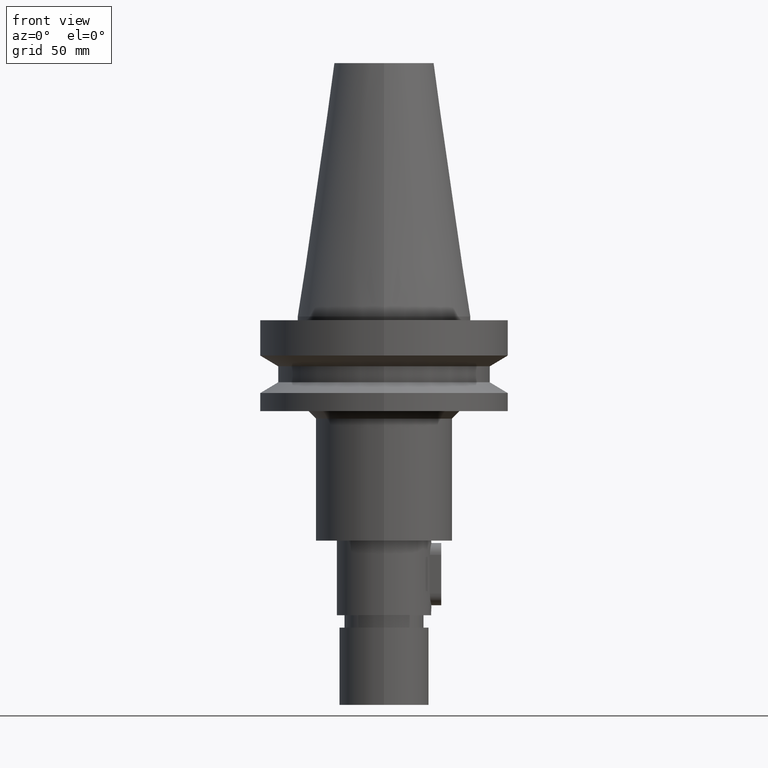
[diagram: clean part render]
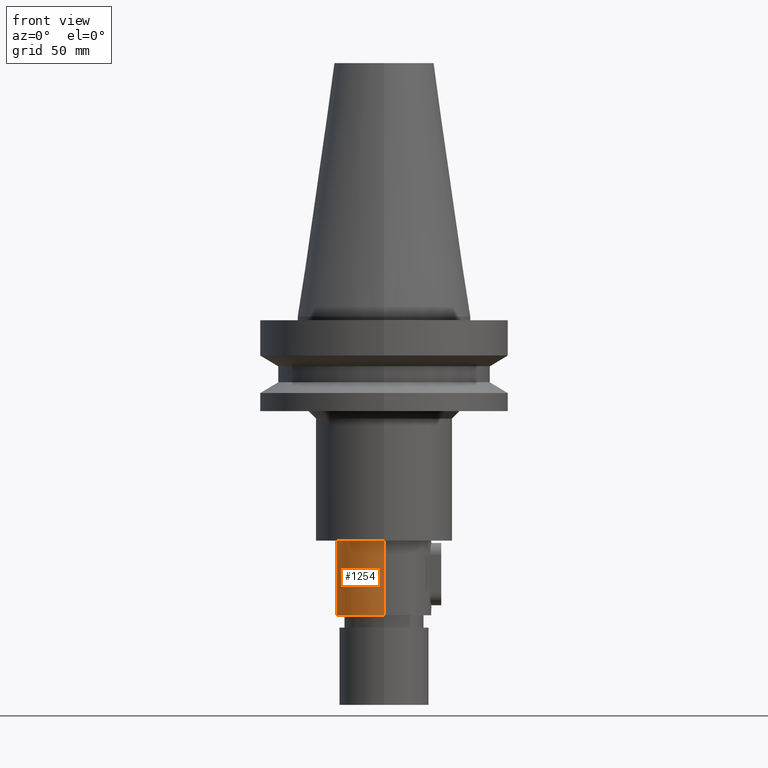
[diagram: same view with one face highlighted and labeled with its STEP entity id]
A machine part, front view. The second image highlights one B-rep face of the part: STEP entity #1254.
In plain terms, the highlighted cylindrical surface (partial cylindrical patch) has radius 19.05 mm, axis along (0, 0, -1).
Its self-contained STEP definition (entity closure, byte-faithful):
#436=CARTESIAN_POINT('',(0.E0,2.629194213089E-14,-9.E1));
#437=DIRECTION('',(0.E0,0.E0,-1.E0));
#438=DIRECTION('',(0.E0,-1.E0,0.E0));
#439=AXIS2_PLACEMENT_3D('',#436,#437,#438);
#444=DIRECTION('',(0.E0,0.E0,-1.E0));
#445=VECTOR('',#444,3.E1);
#446=CARTESIAN_POINT('',(0.E0,1.905E1,-9.E1));
#447=LINE('',#446,#445);
#465=DIRECTION('',(0.E0,0.E0,-1.E0));
#466=VECTOR('',#465,3.E1);
#467=CARTESIAN_POINT('',(0.E0,-1.905E1,-9.E1));
#468=LINE('',#467,#466);
#472=CARTESIAN_POINT('',(0.E0,2.629194213089E-14,-1.2E2));
#473=DIRECTION('',(0.E0,0.E0,1.E0));
#474=DIRECTION('',(0.E0,1.E0,0.E0));
#475=AXIS2_PLACEMENT_3D('',#472,#473,#474);
#770=CARTESIAN_POINT('',(0.E0,1.905E1,-9.E1));
#771=CARTESIAN_POINT('',(0.E0,-1.905E1,-9.E1));
#772=VERTEX_POINT('',#770);
#773=VERTEX_POINT('',#771);
#774=CARTESIAN_POINT('',(0.E0,1.905E1,-1.2E2));
#775=VERTEX_POINT('',#774);
#776=CARTESIAN_POINT('',(0.E0,-1.905E1,-1.2E2));
#777=VERTEX_POINT('',#776);
#1242=CARTESIAN_POINT('',(0.E0,2.629194213089E-14,1.1469E2));
#1243=DIRECTION('',(0.E0,0.E0,-1.E0));
#1244=DIRECTION('',(0.E0,-1.E0,0.E0));
#1245=AXIS2_PLACEMENT_3D('',#1242,#1243,#1244);
#1246=CYLINDRICAL_SURFACE('',#1245,1.905E1);
#1247=ORIENTED_EDGE('',*,*,#1218,.F.);
#1248=ORIENTED_EDGE('',*,*,#1208,.F.);
#1249=ORIENTED_EDGE('',*,*,#1222,.T.);
#1251=ORIENTED_EDGE('',*,*,#1250,.F.);
#1252=EDGE_LOOP('',(#1247,#1248,#1249,#1251));
#1253=FACE_OUTER_BOUND('',#1252,.F.);
#440=CIRCLE('',#439,1.905E1);
#476=CIRCLE('',#475,1.905E1);
#1208=EDGE_CURVE('',#773,#772,#440,.T.);
#1218=EDGE_CURVE('',#772,#775,#447,.T.);
#1222=EDGE_CURVE('',#773,#777,#468,.T.);
#1250=EDGE_CURVE('',#775,#777,#476,.T.);
#1254=ADVANCED_FACE('',(#1253),#1246,.T.);